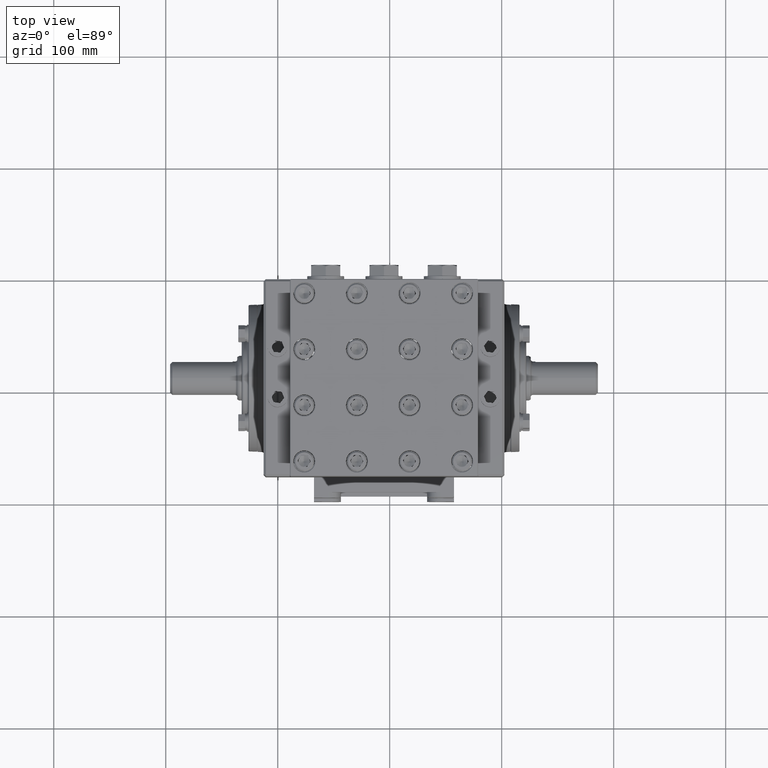
[diagram: clean part render]
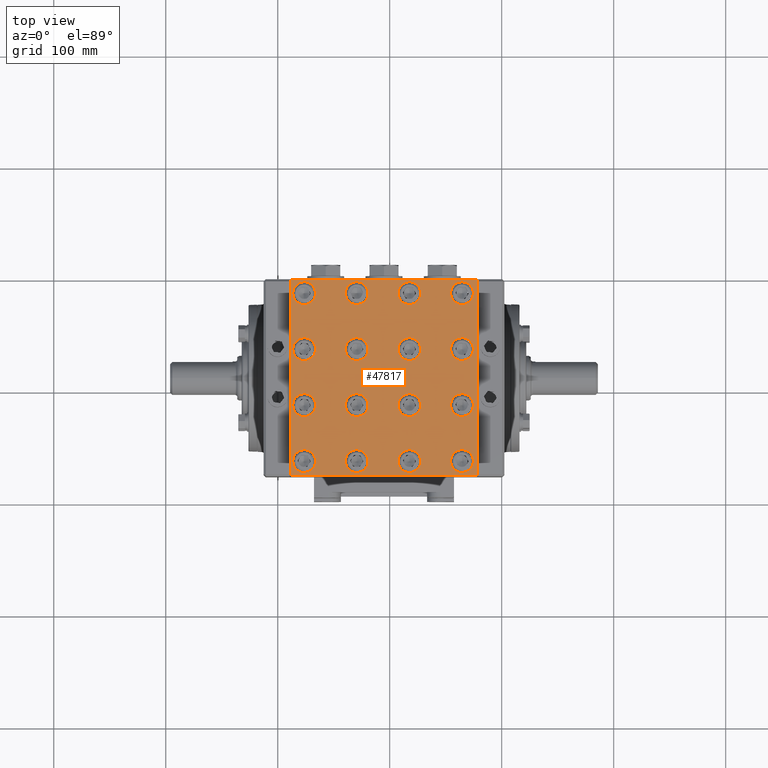
[diagram: same view with one face highlighted and labeled with its STEP entity id]
A machine part, top view. The second image highlights one B-rep face of the part: STEP entity #47817.
In plain terms, the highlighted planar face has unit normal (-0, 0, 1).
Its self-contained STEP definition (entity closure, byte-faithful):
#26 = CARTESIAN_POINT ( 'NONE',  ( -2.609849509139160695, -2.733418732121772887, 14.64346456692805631 ) ) ;
#61 = AXIS2_PLACEMENT_3D ( 'NONE', #79030, #23384, #43283 ) ;
#584 = CIRCLE ( 'NONE', #51112, 0.4000000000000000777 ) ;
#645 = EDGE_CURVE ( 'NONE', #26599, #82373, #77519, .T. ) ;
#769 = AXIS2_PLACEMENT_3D ( 'NONE', #23781, #51327, #16986 ) ;
#867 = VERTEX_POINT ( 'NONE', #82475 ) ;
#897 = CIRCLE ( 'NONE', #83296, 0.4000000000000000777 ) ;
#1344 = AXIS2_PLACEMENT_3D ( 'NONE', #33547, #46647, #47094 ) ;
#1382 = CARTESIAN_POINT ( 'NONE',  ( 2.540150490860839660, -0.7649147951138978163, 14.64346456692805631 ) ) ;
#1426 = ORIENTED_EDGE ( 'NONE', *, *, #69231, .T. ) ;
#2611 = CARTESIAN_POINT ( 'NONE',  ( -3.509849509139161494, 3.647093078901849417, 14.64346456692805631 ) ) ;
#2849 = EDGE_LOOP ( 'NONE', ( #64271, #36902 ) ) ;
#3205 = CARTESIAN_POINT ( 'NONE',  ( -0.7598495091391606060, -0.7649147951138982604, 14.64346456692805631 ) ) ;
#3699 = EDGE_CURVE ( 'NONE', #30449, #70254, #10272, .T. ) ;
#4142 = EDGE_LOOP ( 'NONE', ( #82458, #89524 ) ) ;
#4489 = CARTESIAN_POINT ( 'NONE',  ( 2.540150490860839660, 3.172093078901850660, 14.64346456692805631 ) ) ;
#4766 = DIRECTION ( 'NONE',  ( 1.000000000000000000, 0.000000000000000000, 0.000000000000000000 ) ) ;
#4939 = EDGE_CURVE ( 'NONE', #56350, #37562, #59537, .T. ) ;
#5762 = CIRCLE ( 'NONE', #66454, 0.4000000000000000777 ) ;
#5871 = VERTEX_POINT ( 'NONE', #28826 ) ;
#5922 = PLANE ( 'NONE',  #19599 ) ;
#6393 = DIRECTION ( 'NONE',  ( 1.000000000000000000, 0.000000000000000000, 0.000000000000000000 ) ) ;
#6637 = EDGE_CURVE ( 'NONE', #70254, #30449, #59734, .T. ) ;
#6716 = CIRCLE ( 'NONE', #45645, 0.4000000000000000777 ) ;
#6831 = DIRECTION ( 'NONE',  ( 1.000000000000000000, 8.255811404243770063E-17, 0.000000000000000000 ) ) ;
#6914 = DIRECTION ( 'NONE',  ( 1.000000000000000000, 0.000000000000000000, 0.000000000000000000 ) ) ;
#7006 = ORIENTED_EDGE ( 'NONE', *, *, #16252, .T. ) ;
#7070 = EDGE_CURVE ( 'NONE', #82373, #26599, #584, .T. ) ;
#7438 = DIRECTION ( 'NONE',  ( 1.000000000000000000, 0.000000000000000000, 0.000000000000000000 ) ) ;
#7517 = CARTESIAN_POINT ( 'NONE',  ( 3.083150490860838921, 3.647093078901849861, 14.64346456692805631 ) ) ;
#7745 = VERTEX_POINT ( 'NONE', #52954 ) ;
#7843 = VECTOR ( 'NONE', #27519, 39.37007874015748143 ) ;
#7992 = DIRECTION ( 'NONE',  ( 0.000000000000000000, -0.000000000000000000, -1.000000000000000000 ) ) ;
#8161 = CARTESIAN_POINT ( 'NONE',  ( 3.108150490860838833, -3.237906921098149482, 14.64346456692805631 ) ) ;
#8273 = VECTOR ( 'NONE', #30228, 39.37007874015748143 ) ;
#8658 = DIRECTION ( 'NONE',  ( 0.000000000000000000, -0.000000000000000000, -1.000000000000000000 ) ) ;
#8675 = FACE_BOUND ( 'NONE', #77203, .T. ) ;
#8956 = VERTEX_POINT ( 'NONE', #59752 ) ;
#9114 = FACE_BOUND ( 'NONE', #59397, .T. ) ;
#9420 = VECTOR ( 'NONE', #6831, 39.37007874015748143 ) ;
#10189 = EDGE_CURVE ( 'NONE', #55303, #35876, #62901, .T. ) ;
#10272 = CIRCLE ( 'NONE', #70967, 0.4000000000000000777 ) ;
#10301 = EDGE_CURVE ( 'NONE', #27484, #36267, #62831, .T. ) ;
#10351 = DIRECTION ( 'NONE',  ( 1.000000000000000000, 0.000000000000000000, 0.000000000000000000 ) ) ;
#10405 = AXIS2_PLACEMENT_3D ( 'NONE', #14084, #54771, #6393 ) ;
#10874 = CARTESIAN_POINT ( 'NONE',  ( -1.159849509139160961, 3.172093078901850216, 14.64346456692805631 ) ) ;
#10924 = EDGE_CURVE ( 'NONE', #69188, #37730, #897, .T. ) ;
#10989 = ORIENTED_EDGE ( 'NONE', *, *, #65395, .T. ) ;
#10995 = AXIS2_PLACEMENT_3D ( 'NONE', #16343, #71978, #84253 ) ;
#10996 = ORIENTED_EDGE ( 'NONE', *, *, #4939, .T. ) ;
#11321 = DIRECTION ( 'NONE',  ( 0.000000000000000000, -0.000000000000000000, -1.000000000000000000 ) ) ;
#11362 = FACE_BOUND ( 'NONE', #62537, .T. ) ;
#11727 = EDGE_CURVE ( 'NONE', #51646, #45116, #71744, .T. ) ;
#11806 = FACE_BOUND ( 'NONE', #69727, .T. ) ;
#11844 = DIRECTION ( 'NONE',  ( 1.000000000000000000, 0.000000000000000000, 0.000000000000000000 ) ) ;
#12135 = EDGE_LOOP ( 'NONE', ( #60916, #19942, #27462, #88719 ) ) ;
#12166 = DIRECTION ( 'NONE',  ( 0.000000000000000000, -0.000000000000000000, -1.000000000000000000 ) ) ;
#12355 = CARTESIAN_POINT ( 'NONE',  ( -3.484849509139160251, -3.262906921098149837, 14.64346456692805631 ) ) ;
#12432 = DIRECTION ( 'NONE',  ( 1.000000000000000000, 0.000000000000000000, 0.000000000000000000 ) ) ;
#12514 = DIRECTION ( 'NONE',  ( 0.000000000000000000, -0.000000000000000000, -1.000000000000000000 ) ) ;
#13053 = CARTESIAN_POINT ( 'NONE',  ( 3.083150490860838921, 3.672093078901849772, 14.64346456692805631 ) ) ;
#13629 = DIRECTION ( 'NONE',  ( 1.000000000000000000, 0.000000000000000000, 0.000000000000000000 ) ) ;
#13967 = CARTESIAN_POINT ( 'NONE',  ( 2.540150490860839660, -2.733418732121771555, 14.64346456692805631 ) ) ;
#14084 = CARTESIAN_POINT ( 'NONE',  ( -1.159849509139160961, 3.172093078901850216, 14.64346456692805631 ) ) ;
#14196 = ORIENTED_EDGE ( 'NONE', *, *, #17265, .T. ) ;
#15370 = AXIS2_PLACEMENT_3D ( 'NONE', #1382, #84231, #49784 ) ;
#16252 = EDGE_CURVE ( 'NONE', #37730, #69188, #54905, .T. ) ;
#16343 = CARTESIAN_POINT ( 'NONE',  ( -1.159849509139160739, 1.203589141893975700, 14.64346456692805631 ) ) ;
#16866 = AXIS2_PLACEMENT_3D ( 'NONE', #73835, #60674, #11844 ) ;
#16986 = DIRECTION ( 'NONE',  ( 1.000000000000000000, 0.000000000000000000, 0.000000000000000000 ) ) ;
#17265 = EDGE_CURVE ( 'NONE', #24823, #83249, #40590, .T. ) ;
#17705 = FACE_BOUND ( 'NONE', #41582, .T. ) ;
#18390 = VERTEX_POINT ( 'NONE', #66695 ) ;
#18657 = ORIENTED_EDGE ( 'NONE', *, *, #32126, .T. ) ;
#19281 = CARTESIAN_POINT ( 'NONE',  ( 2.540150490860839660, 3.172093078901850660, 14.64346456692805631 ) ) ;
#19599 = AXIS2_PLACEMENT_3D ( 'NONE', #53853, #72900, #74700 ) ;
#19942 = ORIENTED_EDGE ( 'NONE', *, *, #46357, .T. ) ;
#20182 = DIRECTION ( 'NONE',  ( 1.000000000000000000, 0.000000000000000000, 0.000000000000000000 ) ) ;
#20510 = DIRECTION ( 'NONE',  ( 1.000000000000000000, 0.000000000000000000, 0.000000000000000000 ) ) ;
#21001 = DIRECTION ( 'NONE',  ( 0.000000000000000000, -0.000000000000000000, -1.000000000000000000 ) ) ;
#21035 = DIRECTION ( 'NONE',  ( 1.000000000000000000, 0.000000000000000000, 0.000000000000000000 ) ) ;
#21097 = EDGE_CURVE ( 'NONE', #867, #43019, #52357, .T. ) ;
#21336 = AXIS2_PLACEMENT_3D ( 'NONE', #34114, #73502, #68491 ) ;
#21752 = DIRECTION ( 'NONE',  ( 0.000000000000000000, -0.000000000000000000, -1.000000000000000000 ) ) ;
#21923 = DIRECTION ( 'NONE',  ( 0.000000000000000000, -0.000000000000000000, -1.000000000000000000 ) ) ;
#22336 = VERTEX_POINT ( 'NONE', #7517 ) ;
#22780 = ORIENTED_EDGE ( 'NONE', *, *, #65393, .T. ) ;
#22901 = CARTESIAN_POINT ( 'NONE',  ( 2.540150490860839660, 1.203589141893976366, 14.64346456692805631 ) ) ;
#22943 = CARTESIAN_POINT ( 'NONE',  ( -3.409849509139160517, -2.733418732121772887, 14.64346456692805631 ) ) ;
#23384 = DIRECTION ( 'NONE',  ( 0.000000000000000000, -0.000000000000000000, -1.000000000000000000 ) ) ;
#23781 = CARTESIAN_POINT ( 'NONE',  ( -1.159849509139160517, -2.733418732121772887, 14.64346456692805631 ) ) ;
#24371 = CIRCLE ( 'NONE', #31592, 0.4000000000000000777 ) ;
#24515 = FACE_BOUND ( 'NONE', #35941, .T. ) ;
#24527 = DIRECTION ( 'NONE',  ( 0.000000000000000000, -0.000000000000000000, -1.000000000000000000 ) ) ;
#24568 = AXIS2_PLACEMENT_3D ( 'NONE', #4489, #12166, #61447 ) ;
#24823 = VERTEX_POINT ( 'NONE', #89626 ) ;
#25403 = FACE_BOUND ( 'NONE', #69992, .T. ) ;
#25858 = CIRCLE ( 'NONE', #48949, 0.4000000000000000777 ) ;
#26277 = FACE_BOUND ( 'NONE', #60991, .T. ) ;
#26330 = ORIENTED_EDGE ( 'NONE', *, *, #45446, .T. ) ;
#26408 = CARTESIAN_POINT ( 'NONE',  ( 0.6901504908608392386, 1.203589141893975922, 14.64346456692805631 ) ) ;
#26599 = VERTEX_POINT ( 'NONE', #29733 ) ;
#26960 = CIRCLE ( 'NONE', #81881, 0.4000000000000000777 ) ;
#27015 = EDGE_CURVE ( 'NONE', #45116, #51646, #39801, .T. ) ;
#27156 = AXIS2_PLACEMENT_3D ( 'NONE', #73948, #82099, #81650 ) ;
#27335 = VERTEX_POINT ( 'NONE', #70269 ) ;
#27462 = ORIENTED_EDGE ( 'NONE', *, *, #71621, .T. ) ;
#27484 = VERTEX_POINT ( 'NONE', #32245 ) ;
#27519 = DIRECTION ( 'NONE',  ( 0.000000000000000000, 1.000000000000000000, 0.000000000000000000 ) ) ;
#27715 = EDGE_CURVE ( 'NONE', #7745, #71678, #65945, .T. ) ;
#27793 = VERTEX_POINT ( 'NONE', #86493 ) ;
#27875 = CARTESIAN_POINT ( 'NONE',  ( 1.090150490860839261, 1.203589141893975922, 14.64346456692805631 ) ) ;
#27996 = AXIS2_PLACEMENT_3D ( 'NONE', #44730, #72337, #10351 ) ;
#28074 = EDGE_LOOP ( 'NONE', ( #44267, #77173 ) ) ;
#28826 = CARTESIAN_POINT ( 'NONE',  ( -2.609849509139161583, 3.172093078901849772, 14.64346456692805631 ) ) ;
#29250 = CARTESIAN_POINT ( 'NONE',  ( 0.6901504908608392386, 1.203589141893975922, 14.64346456692805631 ) ) ;
#29285 = ORIENTED_EDGE ( 'NONE', *, *, #57453, .T. ) ;
#29463 = VERTEX_POINT ( 'NONE', #65338 ) ;
#29733 = CARTESIAN_POINT ( 'NONE',  ( -2.609849509139160695, -0.7649147951138988155, 14.64346456692805631 ) ) ;
#29818 = VERTEX_POINT ( 'NONE', #36740 ) ;
#30228 = DIRECTION ( 'NONE',  ( -1.000000000000000000, -8.255811404243768831E-17, 0.000000000000000000 ) ) ;
#30449 = VERTEX_POINT ( 'NONE', #73715 ) ;
#30705 = CIRCLE ( 'NONE', #84146, 0.4000000000000000777 ) ;
#30830 = ORIENTED_EDGE ( 'NONE', *, *, #76421, .T. ) ;
#31592 = AXIS2_PLACEMENT_3D ( 'NONE', #63500, #21923, #84368 ) ;
#32126 = EDGE_CURVE ( 'NONE', #36582, #5871, #88544, .T. ) ;
#32166 = DIRECTION ( 'NONE',  ( 1.000000000000000000, 0.000000000000000000, 0.000000000000000000 ) ) ;
#32245 = CARTESIAN_POINT ( 'NONE',  ( -1.559849509139160872, -0.7649147951138982604, 14.64346456692805631 ) ) ;
#33017 = EDGE_CURVE ( 'NONE', #70025, #59266, #48102, .T. ) ;
#33061 = FACE_BOUND ( 'NONE', #41235, .T. ) ;
#33547 = CARTESIAN_POINT ( 'NONE',  ( 0.6901504908608392386, 3.172093078901850660, 14.64346456692805631 ) ) ;
#34114 = CARTESIAN_POINT ( 'NONE',  ( -3.009849509139161050, 3.172093078901849772, 14.64346456692805631 ) ) ;
#34430 = CARTESIAN_POINT ( 'NONE',  ( -2.609849509139160695, 1.203589141893975700, 14.64346456692805631 ) ) ;
#34476 = ORIENTED_EDGE ( 'NONE', *, *, #50562, .T. ) ;
#34656 = CARTESIAN_POINT ( 'NONE',  ( -3.409849509139160517, -0.7649147951138988155, 14.64346456692805631 ) ) ;
#34660 = AXIS2_PLACEMENT_3D ( 'NONE', #74909, #68552, #21035 ) ;
#35216 = AXIS2_PLACEMENT_3D ( 'NONE', #59762, #24527, #52064 ) ;
#35624 = CIRCLE ( 'NONE', #70274, 0.4000000000000000777 ) ;
#35876 = VERTEX_POINT ( 'NONE', #76350 ) ;
#35941 = EDGE_LOOP ( 'NONE', ( #71042, #71848 ) ) ;
#36253 = DIRECTION ( 'NONE',  ( 1.000000000000000000, 0.000000000000000000, 0.000000000000000000 ) ) ;
#36267 = VERTEX_POINT ( 'NONE', #3205 ) ;
#36484 = DIRECTION ( 'NONE',  ( 1.000000000000000000, 0.000000000000000000, 0.000000000000000000 ) ) ;
#36582 = VERTEX_POINT ( 'NONE', #72779 ) ;
#36740 = CARTESIAN_POINT ( 'NONE',  ( -3.484849509139161583, 3.647093078901849417, 14.64346456692805631 ) ) ;
#36827 = ORIENTED_EDGE ( 'NONE', *, *, #39586, .T. ) ;
#36886 = CARTESIAN_POINT ( 'NONE',  ( 1.090150490860839927, -2.733418732121771555, 14.64346456692805631 ) ) ;
#36902 = ORIENTED_EDGE ( 'NONE', *, *, #55301, .T. ) ;
#37484 = VERTEX_POINT ( 'NONE', #77138 ) ;
#37562 = VERTEX_POINT ( 'NONE', #44947 ) ;
#37730 = VERTEX_POINT ( 'NONE', #22943 ) ;
#37952 = AXIS2_PLACEMENT_3D ( 'NONE', #87172, #38709, #4766 ) ;
#38043 = CARTESIAN_POINT ( 'NONE',  ( 0.6901504908608397937, -2.733418732121771555, 14.64346456692805631 ) ) ;
#38531 = FACE_BOUND ( 'NONE', #79129, .T. ) ;
#38709 = DIRECTION ( 'NONE',  ( 0.000000000000000000, -0.000000000000000000, -1.000000000000000000 ) ) ;
#38941 = DIRECTION ( 'NONE',  ( 0.000000000000000000, -0.000000000000000000, -1.000000000000000000 ) ) ;
#38961 = CIRCLE ( 'NONE', #1344, 0.4000000000000000777 ) ;
#38969 = FACE_BOUND ( 'NONE', #4142, .T. ) ;
#39013 = EDGE_CURVE ( 'NONE', #8956, #64432, #6716, .T. ) ;
#39211 = DIRECTION ( 'NONE',  ( 1.000000000000000000, 0.000000000000000000, 0.000000000000000000 ) ) ;
#39586 = EDGE_CURVE ( 'NONE', #27793, #27335, #40048, .T. ) ;
#39689 = ORIENTED_EDGE ( 'NONE', *, *, #7070, .T. ) ;
#39801 = CIRCLE ( 'NONE', #769, 0.4000000000000000777 ) ;
#39864 = FACE_BOUND ( 'NONE', #2849, .T. ) ;
#40048 = CIRCLE ( 'NONE', #71804, 0.4000000000000000777 ) ;
#40107 = CARTESIAN_POINT ( 'NONE',  ( -3.009849509139160606, -2.733418732121772887, 14.64346456692805631 ) ) ;
#40557 = ORIENTED_EDGE ( 'NONE', *, *, #33017, .T. ) ;
#40590 = CIRCLE ( 'NONE', #61, 0.4000000000000000777 ) ;
#40851 = DIRECTION ( 'NONE',  ( 0.000000000000000000, -0.000000000000000000, -1.000000000000000000 ) ) ;
#41235 = EDGE_LOOP ( 'NONE', ( #26330, #59371 ) ) ;
#41582 = EDGE_LOOP ( 'NONE', ( #10989, #18657 ) ) ;
#42864 = DIRECTION ( 'NONE',  ( 1.000000000000000000, 0.000000000000000000, 0.000000000000000000 ) ) ;
#43019 = VERTEX_POINT ( 'NONE', #67273 ) ;
#43233 = VERTEX_POINT ( 'NONE', #57657 ) ;
#43283 = DIRECTION ( 'NONE',  ( 1.000000000000000000, 0.000000000000000000, 0.000000000000000000 ) ) ;
#43559 = DIRECTION ( 'NONE',  ( 1.000000000000000000, 0.000000000000000000, 0.000000000000000000 ) ) ;
#43580 = DIRECTION ( 'NONE',  ( 0.000000000000000000, -0.000000000000000000, -1.000000000000000000 ) ) ;
#43866 = EDGE_CURVE ( 'NONE', #29818, #55303, #79340, .T. ) ;
#44063 = EDGE_CURVE ( 'NONE', #49143, #18390, #30705, .T. ) ;
#44267 = ORIENTED_EDGE ( 'NONE', *, *, #6637, .T. ) ;
#44730 = CARTESIAN_POINT ( 'NONE',  ( 2.540150490860839660, -0.7649147951138978163, 14.64346456692805631 ) ) ;
#44947 = CARTESIAN_POINT ( 'NONE',  ( -0.7598495091391608280, 3.172093078901850216, 14.64346456692805631 ) ) ;
#45116 = VERTEX_POINT ( 'NONE', #80155 ) ;
#45446 = EDGE_CURVE ( 'NONE', #71678, #7745, #85842, .T. ) ;
#45450 = CARTESIAN_POINT ( 'NONE',  ( -3.009849509139161050, 3.172093078901849772, 14.64346456692805631 ) ) ;
#45645 = AXIS2_PLACEMENT_3D ( 'NONE', #69400, #21001, #43559 ) ;
#46357 = EDGE_CURVE ( 'NONE', #35876, #22336, #46971, .T. ) ;
#46412 = CARTESIAN_POINT ( 'NONE',  ( -3.009849509139160606, -0.7649147951138988155, 14.64346456692805631 ) ) ;
#46647 = DIRECTION ( 'NONE',  ( 0.000000000000000000, -0.000000000000000000, -1.000000000000000000 ) ) ;
#46971 = LINE ( 'NONE', #13053, #7843 ) ;
#47094 = DIRECTION ( 'NONE',  ( 1.000000000000000000, 0.000000000000000000, 0.000000000000000000 ) ) ;
#47484 = DIRECTION ( 'NONE',  ( 0.000000000000000000, -0.000000000000000000, -1.000000000000000000 ) ) ;
#47817 = ADVANCED_FACE ( 'NONE', ( #9114, #24515, #77474, #8675, #33061, #60639, #38969, #11806, #11362, #88311, #74252, #25403, #39864, #26277, #38531, #17705, #73803 ), #5922, .T. ) ;
#48090 = DIRECTION ( 'NONE',  ( 0.000000000000000000, -0.000000000000000000, -1.000000000000000000 ) ) ;
#48102 = CIRCLE ( 'NONE', #63981, 0.4000000000000000777 ) ;
#48892 = AXIS2_PLACEMENT_3D ( 'NONE', #62543, #40851, #6914 ) ;
#48949 = AXIS2_PLACEMENT_3D ( 'NONE', #13967, #55548, #42864 ) ;
#49079 = CIRCLE ( 'NONE', #24568, 0.4000000000000000777 ) ;
#49143 = VERTEX_POINT ( 'NONE', #82411 ) ;
#49601 = DIRECTION ( 'NONE',  ( 0.000000000000000000, -0.000000000000000000, -1.000000000000000000 ) ) ;
#49784 = DIRECTION ( 'NONE',  ( 1.000000000000000000, 0.000000000000000000, 0.000000000000000000 ) ) ;
#49968 = EDGE_CURVE ( 'NONE', #18390, #49143, #86164, .T. ) ;
#50562 = EDGE_CURVE ( 'NONE', #59266, #70025, #26960, .T. ) ;
#50650 = EDGE_LOOP ( 'NONE', ( #40557, #34476 ) ) ;
#51112 = AXIS2_PLACEMENT_3D ( 'NONE', #46412, #12514, #39211 ) ;
#51327 = DIRECTION ( 'NONE',  ( 0.000000000000000000, -0.000000000000000000, -1.000000000000000000 ) ) ;
#51451 = LINE ( 'NONE', #2611, #8273 ) ;
#51646 = VERTEX_POINT ( 'NONE', #74027 ) ;
#52064 = DIRECTION ( 'NONE',  ( 1.000000000000000000, 0.000000000000000000, 0.000000000000000000 ) ) ;
#52310 = VECTOR ( 'NONE', #53047, 39.37007874015748143 ) ;
#52357 = CIRCLE ( 'NONE', #81288, 0.4000000000000000777 ) ;
#52954 = CARTESIAN_POINT ( 'NONE',  ( 2.140150490860839305, -0.7649147951138978163, 14.64346456692805631 ) ) ;
#52974 = EDGE_CURVE ( 'NONE', #43019, #867, #79205, .T. ) ;
#53047 = DIRECTION ( 'NONE',  ( 1.575687379186309254E-16, -1.000000000000000000, 0.000000000000000000 ) ) ;
#53238 = VERTEX_POINT ( 'NONE', #66318 ) ;
#53853 = CARTESIAN_POINT ( 'NONE',  ( -3.509849509139160162, -3.262906921098149837, 14.64346456692805631 ) ) ;
#54209 = CARTESIAN_POINT ( 'NONE',  ( -3.484849509139160251, -3.237906921098149926, 14.64346456692805631 ) ) ;
#54771 = DIRECTION ( 'NONE',  ( 0.000000000000000000, -0.000000000000000000, -1.000000000000000000 ) ) ;
#54905 = CIRCLE ( 'NONE', #34660, 0.4000000000000000777 ) ;
#55301 = EDGE_CURVE ( 'NONE', #43233, #29463, #49079, .T. ) ;
#55303 = VERTEX_POINT ( 'NONE', #54209 ) ;
#55548 = DIRECTION ( 'NONE',  ( 0.000000000000000000, -0.000000000000000000, -1.000000000000000000 ) ) ;
#55762 = DIRECTION ( 'NONE',  ( 0.000000000000000000, -0.000000000000000000, -1.000000000000000000 ) ) ;
#56105 = CIRCLE ( 'NONE', #48892, 0.4000000000000000777 ) ;
#56350 = VERTEX_POINT ( 'NONE', #71265 ) ;
#57453 = EDGE_CURVE ( 'NONE', #37484, #53238, #87104, .T. ) ;
#57520 = CARTESIAN_POINT ( 'NONE',  ( 0.2901504908608391609, 1.203589141893975922, 14.64346456692805631 ) ) ;
#57657 = CARTESIAN_POINT ( 'NONE',  ( 2.140150490860839305, 3.172093078901850660, 14.64346456692805631 ) ) ;
#58710 = EDGE_LOOP ( 'NONE', ( #60113, #79920 ) ) ;
#58902 = CIRCLE ( 'NONE', #27156, 0.4000000000000000777 ) ;
#59266 = VERTEX_POINT ( 'NONE', #57520 ) ;
#59371 = ORIENTED_EDGE ( 'NONE', *, *, #27715, .T. ) ;
#59397 = EDGE_LOOP ( 'NONE', ( #72326, #7006 ) ) ;
#59537 = CIRCLE ( 'NONE', #10405, 0.4000000000000000777 ) ;
#59734 = CIRCLE ( 'NONE', #35216, 0.4000000000000000777 ) ;
#59752 = CARTESIAN_POINT ( 'NONE',  ( -3.409849509139160517, 1.203589141893975700, 14.64346456692805631 ) ) ;
#59762 = CARTESIAN_POINT ( 'NONE',  ( 0.6901504908608397937, -2.733418732121771555, 14.64346456692805631 ) ) ;
#60113 = ORIENTED_EDGE ( 'NONE', *, *, #44063, .T. ) ;
#60639 = FACE_BOUND ( 'NONE', #80087, .T. ) ;
#60674 = DIRECTION ( 'NONE',  ( 0.000000000000000000, -0.000000000000000000, -1.000000000000000000 ) ) ;
#60916 = ORIENTED_EDGE ( 'NONE', *, *, #10189, .T. ) ;
#60991 = EDGE_LOOP ( 'NONE', ( #1426, #29285 ) ) ;
#61329 = DIRECTION ( 'NONE',  ( 1.000000000000000000, 0.000000000000000000, 0.000000000000000000 ) ) ;
#61447 = DIRECTION ( 'NONE',  ( 1.000000000000000000, 0.000000000000000000, 0.000000000000000000 ) ) ;
#61671 = DIRECTION ( 'NONE',  ( 0.000000000000000000, -0.000000000000000000, -1.000000000000000000 ) ) ;
#62089 = ORIENTED_EDGE ( 'NONE', *, *, #645, .T. ) ;
#62537 = EDGE_LOOP ( 'NONE', ( #22780, #68720 ) ) ;
#62543 = CARTESIAN_POINT ( 'NONE',  ( -1.159849509139160739, -0.7649147951138982604, 14.64346456692805631 ) ) ;
#62831 = CIRCLE ( 'NONE', #83168, 0.4000000000000000777 ) ;
#62901 = LINE ( 'NONE', #8161, #9420 ) ;
#63278 = AXIS2_PLACEMENT_3D ( 'NONE', #73343, #47484, #32166 ) ;
#63500 = CARTESIAN_POINT ( 'NONE',  ( 2.540150490860839660, 1.203589141893976366, 14.64346456692805631 ) ) ;
#63981 = AXIS2_PLACEMENT_3D ( 'NONE', #26408, #61671, #20510 ) ;
#64070 = EDGE_CURVE ( 'NONE', #29463, #43233, #35624, .T. ) ;
#64271 = ORIENTED_EDGE ( 'NONE', *, *, #64070, .T. ) ;
#64432 = VERTEX_POINT ( 'NONE', #34430 ) ;
#65218 = ORIENTED_EDGE ( 'NONE', *, *, #73362, .T. ) ;
#65338 = CARTESIAN_POINT ( 'NONE',  ( 2.940150490860839128, 3.172093078901850660, 14.64346456692805631 ) ) ;
#65393 = EDGE_CURVE ( 'NONE', #64432, #8956, #58902, .T. ) ;
#65395 = EDGE_CURVE ( 'NONE', #5871, #36582, #69070, .T. ) ;
#65945 = CIRCLE ( 'NONE', #15370, 0.4000000000000000777 ) ;
#66318 = CARTESIAN_POINT ( 'NONE',  ( 1.090150490860839261, 3.172093078901850660, 14.64346456692805631 ) ) ;
#66454 = AXIS2_PLACEMENT_3D ( 'NONE', #10874, #11321, #81015 ) ;
#66695 = CARTESIAN_POINT ( 'NONE',  ( -1.559849509139160872, 1.203589141893975700, 14.64346456692805631 ) ) ;
#67273 = CARTESIAN_POINT ( 'NONE',  ( 0.2901504908608397160, -0.7649147951138982604, 14.64346456692805631 ) ) ;
#68360 = CARTESIAN_POINT ( 'NONE',  ( -1.159849509139160739, -0.7649147951138982604, 14.64346456692805631 ) ) ;
#68380 = EDGE_CURVE ( 'NONE', #36267, #27484, #56105, .T. ) ;
#68491 = DIRECTION ( 'NONE',  ( 1.000000000000000000, 0.000000000000000000, 0.000000000000000000 ) ) ;
#68552 = DIRECTION ( 'NONE',  ( 0.000000000000000000, -0.000000000000000000, -1.000000000000000000 ) ) ;
#68720 = ORIENTED_EDGE ( 'NONE', *, *, #39013, .T. ) ;
#68722 = EDGE_CURVE ( 'NONE', #83249, #24823, #25858, .T. ) ;
#69070 = CIRCLE ( 'NONE', #21336, 0.3999999999999995781 ) ;
#69188 = VERTEX_POINT ( 'NONE', #26 ) ;
#69231 = EDGE_CURVE ( 'NONE', #53238, #37484, #38961, .T. ) ;
#69400 = CARTESIAN_POINT ( 'NONE',  ( -3.009849509139160606, 1.203589141893975700, 14.64346456692805631 ) ) ;
#69727 = EDGE_LOOP ( 'NONE', ( #62089, #39689 ) ) ;
#69992 = EDGE_LOOP ( 'NONE', ( #65218, #36827 ) ) ;
#70025 = VERTEX_POINT ( 'NONE', #27875 ) ;
#70254 = VERTEX_POINT ( 'NONE', #36886 ) ;
#70269 = CARTESIAN_POINT ( 'NONE',  ( 2.940150490860839128, 1.203589141893976366, 14.64346456692805631 ) ) ;
#70274 = AXIS2_PLACEMENT_3D ( 'NONE', #19281, #55762, #61329 ) ;
#70628 = CARTESIAN_POINT ( 'NONE',  ( -1.159849509139160739, 1.203589141893975700, 14.64346456692805631 ) ) ;
#70967 = AXIS2_PLACEMENT_3D ( 'NONE', #38043, #38941, #73776 ) ;
#71042 = ORIENTED_EDGE ( 'NONE', *, *, #11727, .T. ) ;
#71265 = CARTESIAN_POINT ( 'NONE',  ( -1.559849509139161094, 3.172093078901850216, 14.64346456692805631 ) ) ;
#71621 = EDGE_CURVE ( 'NONE', #22336, #29818, #51451, .T. ) ;
#71678 = VERTEX_POINT ( 'NONE', #74554 ) ;
#71744 = CIRCLE ( 'NONE', #16866, 0.4000000000000000777 ) ;
#71804 = AXIS2_PLACEMENT_3D ( 'NONE', #22901, #7992, #85367 ) ;
#71848 = ORIENTED_EDGE ( 'NONE', *, *, #27015, .T. ) ;
#71978 = DIRECTION ( 'NONE',  ( 0.000000000000000000, -0.000000000000000000, -1.000000000000000000 ) ) ;
#72326 = ORIENTED_EDGE ( 'NONE', *, *, #10924, .T. ) ;
#72337 = DIRECTION ( 'NONE',  ( 0.000000000000000000, -0.000000000000000000, -1.000000000000000000 ) ) ;
#72779 = CARTESIAN_POINT ( 'NONE',  ( -3.409849509139160517, 3.172093078901849772, 14.64346456692805631 ) ) ;
#72900 = DIRECTION ( 'NONE',  ( -0.000000000000000000, 0.000000000000000000, 1.000000000000000000 ) ) ;
#73190 = ORIENTED_EDGE ( 'NONE', *, *, #68722, .T. ) ;
#73343 = CARTESIAN_POINT ( 'NONE',  ( 0.6901504908608397937, -0.7649147951138982604, 14.64346456692805631 ) ) ;
#73362 = EDGE_CURVE ( 'NONE', #27335, #27793, #24371, .T. ) ;
#73502 = DIRECTION ( 'NONE',  ( 0.000000000000000000, -0.000000000000000000, -1.000000000000000000 ) ) ;
#73715 = CARTESIAN_POINT ( 'NONE',  ( 0.2901504908608397160, -2.733418732121771555, 14.64346456692805631 ) ) ;
#73776 = DIRECTION ( 'NONE',  ( 1.000000000000000000, 0.000000000000000000, 0.000000000000000000 ) ) ;
#73803 = FACE_OUTER_BOUND ( 'NONE', #12135, .T. ) ;
#73831 = CARTESIAN_POINT ( 'NONE',  ( 2.940150490860839128, -2.733418732121771555, 14.64346456692805631 ) ) ;
#73835 = CARTESIAN_POINT ( 'NONE',  ( -1.159849509139160517, -2.733418732121772887, 14.64346456692805631 ) ) ;
#73948 = CARTESIAN_POINT ( 'NONE',  ( -3.009849509139160606, 1.203589141893975700, 14.64346456692805631 ) ) ;
#74027 = CARTESIAN_POINT ( 'NONE',  ( -0.7598495091391602729, -2.733418732121772887, 14.64346456692805631 ) ) ;
#74252 = FACE_BOUND ( 'NONE', #50650, .T. ) ;
#74554 = CARTESIAN_POINT ( 'NONE',  ( 2.940150490860839128, -0.7649147951138978163, 14.64346456692805631 ) ) ;
#74700 = DIRECTION ( 'NONE',  ( 1.000000000000000000, 0.000000000000000000, 0.000000000000000000 ) ) ;
#74909 = CARTESIAN_POINT ( 'NONE',  ( -3.009849509139160606, -2.733418732121772887, 14.64346456692805631 ) ) ;
#75289 = DIRECTION ( 'NONE',  ( 1.000000000000000000, 0.000000000000000000, 0.000000000000000000 ) ) ;
#76350 = CARTESIAN_POINT ( 'NONE',  ( 3.083150490860838921, -3.237906921098149482, 14.64346456692805631 ) ) ;
#76421 = EDGE_CURVE ( 'NONE', #37562, #56350, #5762, .T. ) ;
#76624 = CARTESIAN_POINT ( 'NONE',  ( 0.6901504908608397937, -0.7649147951138982604, 14.64346456692805631 ) ) ;
#77138 = CARTESIAN_POINT ( 'NONE',  ( 0.2901504908608391609, 3.172093078901850660, 14.64346456692805631 ) ) ;
#77173 = ORIENTED_EDGE ( 'NONE', *, *, #3699, .T. ) ;
#77203 = EDGE_LOOP ( 'NONE', ( #73190, #14196 ) ) ;
#77474 = FACE_BOUND ( 'NONE', #28074, .T. ) ;
#77519 = CIRCLE ( 'NONE', #84775, 0.4000000000000000777 ) ;
#77555 = CARTESIAN_POINT ( 'NONE',  ( -3.009849509139160606, -0.7649147951138988155, 14.64346456692805631 ) ) ;
#77771 = ORIENTED_EDGE ( 'NONE', *, *, #52974, .T. ) ;
#78341 = AXIS2_PLACEMENT_3D ( 'NONE', #45450, #87149, #12432 ) ;
#79030 = CARTESIAN_POINT ( 'NONE',  ( 2.540150490860839660, -2.733418732121771555, 14.64346456692805631 ) ) ;
#79129 = EDGE_LOOP ( 'NONE', ( #30830, #10996 ) ) ;
#79205 = CIRCLE ( 'NONE', #63278, 0.4000000000000000777 ) ;
#79340 = LINE ( 'NONE', #12355, #52310 ) ;
#79920 = ORIENTED_EDGE ( 'NONE', *, *, #49968, .T. ) ;
#80087 = EDGE_LOOP ( 'NONE', ( #84011, #77771 ) ) ;
#80155 = CARTESIAN_POINT ( 'NONE',  ( -1.559849509139160428, -2.733418732121772887, 14.64346456692805631 ) ) ;
#81015 = DIRECTION ( 'NONE',  ( 1.000000000000000000, 0.000000000000000000, 0.000000000000000000 ) ) ;
#81288 = AXIS2_PLACEMENT_3D ( 'NONE', #76624, #48090, #75289 ) ;
#81650 = DIRECTION ( 'NONE',  ( 1.000000000000000000, 0.000000000000000000, 0.000000000000000000 ) ) ;
#81881 = AXIS2_PLACEMENT_3D ( 'NONE', #29250, #49601, #36484 ) ;
#82099 = DIRECTION ( 'NONE',  ( 0.000000000000000000, -0.000000000000000000, -1.000000000000000000 ) ) ;
#82195 = DIRECTION ( 'NONE',  ( 0.000000000000000000, -0.000000000000000000, -1.000000000000000000 ) ) ;
#82373 = VERTEX_POINT ( 'NONE', #34656 ) ;
#82411 = CARTESIAN_POINT ( 'NONE',  ( -0.7598495091391606060, 1.203589141893975700, 14.64346456692805631 ) ) ;
#82458 = ORIENTED_EDGE ( 'NONE', *, *, #68380, .T. ) ;
#82475 = CARTESIAN_POINT ( 'NONE',  ( 1.090150490860839927, -0.7649147951138982604, 14.64346456692805631 ) ) ;
#83168 = AXIS2_PLACEMENT_3D ( 'NONE', #68360, #21752, #13629 ) ;
#83249 = VERTEX_POINT ( 'NONE', #73831 ) ;
#83296 = AXIS2_PLACEMENT_3D ( 'NONE', #40107, #82195, #20182 ) ;
#84011 = ORIENTED_EDGE ( 'NONE', *, *, #21097, .T. ) ;
#84146 = AXIS2_PLACEMENT_3D ( 'NONE', #70628, #8658, #36253 ) ;
#84231 = DIRECTION ( 'NONE',  ( 0.000000000000000000, -0.000000000000000000, -1.000000000000000000 ) ) ;
#84253 = DIRECTION ( 'NONE',  ( 1.000000000000000000, 0.000000000000000000, 0.000000000000000000 ) ) ;
#84368 = DIRECTION ( 'NONE',  ( 1.000000000000000000, 0.000000000000000000, 0.000000000000000000 ) ) ;
#84775 = AXIS2_PLACEMENT_3D ( 'NONE', #77555, #43580, #7438 ) ;
#85367 = DIRECTION ( 'NONE',  ( 1.000000000000000000, 0.000000000000000000, 0.000000000000000000 ) ) ;
#85842 = CIRCLE ( 'NONE', #27996, 0.4000000000000000777 ) ;
#86164 = CIRCLE ( 'NONE', #10995, 0.4000000000000000777 ) ;
#86493 = CARTESIAN_POINT ( 'NONE',  ( 2.140150490860839305, 1.203589141893976366, 14.64346456692805631 ) ) ;
#87104 = CIRCLE ( 'NONE', #37952, 0.4000000000000000777 ) ;
#87149 = DIRECTION ( 'NONE',  ( 0.000000000000000000, -0.000000000000000000, -1.000000000000000000 ) ) ;
#87172 = CARTESIAN_POINT ( 'NONE',  ( 0.6901504908608392386, 3.172093078901850660, 14.64346456692805631 ) ) ;
#88311 = FACE_BOUND ( 'NONE', #58710, .T. ) ;
#88544 = CIRCLE ( 'NONE', #78341, 0.3999999999999995781 ) ;
#88719 = ORIENTED_EDGE ( 'NONE', *, *, #43866, .T. ) ;
#89524 = ORIENTED_EDGE ( 'NONE', *, *, #10301, .T. ) ;
#89626 = CARTESIAN_POINT ( 'NONE',  ( 2.140150490860839305, -2.733418732121771555, 14.64346456692805631 ) ) ;